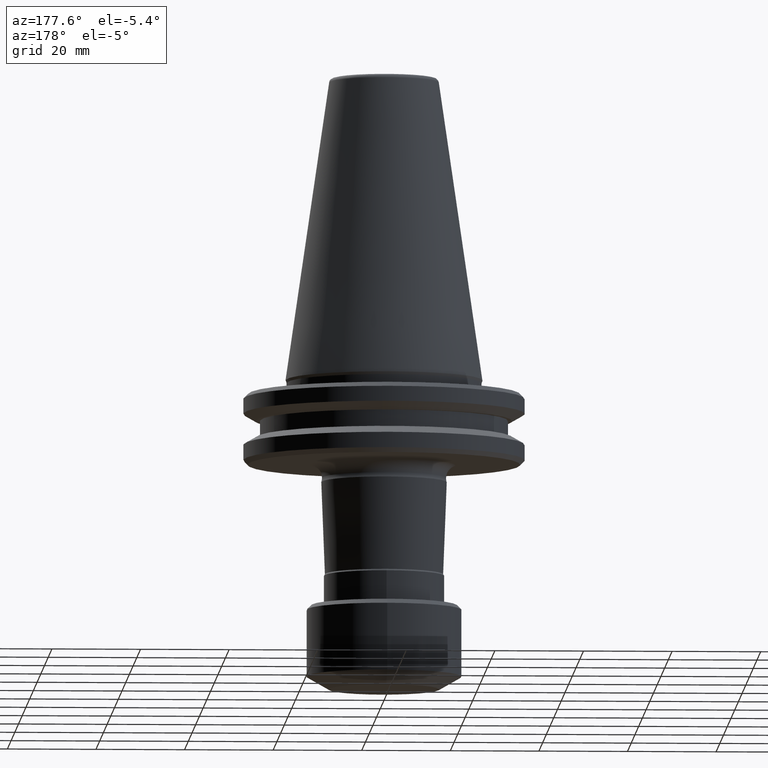
[diagram: clean part render]
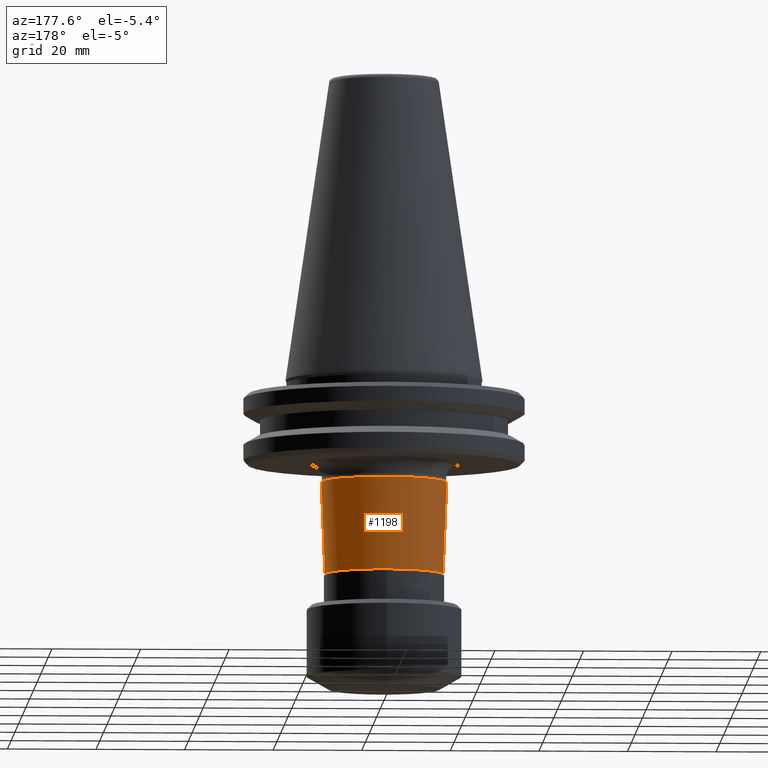
[diagram: same view with one face highlighted and labeled with its STEP entity id]
A machine part, auxiliary view. The second image highlights one B-rep face of the part: STEP entity #1198.
In plain terms, the highlighted conical surface has half-angle 2.232 deg.
Its self-contained STEP definition (entity closure, byte-faithful):
#40 = CARTESIAN_POINT ( 'NONE',  ( 0.0000000000000000000, 13.34720323443339000, 44.57400106754526100 ) ) ;
#41 = CIRCLE ( 'NONE', #1103, 13.34720323443339600 ) ;
#78 = VERTEX_POINT ( 'NONE', #818 ) ;
#93 = VERTEX_POINT ( 'NONE', #986 ) ;
#107 = CARTESIAN_POINT ( 'NONE',  ( 12.54406990404315000, 0.0000000000000000000, 23.96769204457355300 ) ) ;
#142 = CARTESIAN_POINT ( 'NONE',  ( -12.54406990404315000, 1.536205505626709200E-015, 23.96769204457355300 ) ) ;
#151 = AXIS2_PLACEMENT_3D ( 'NONE', #1184, #1091, #926 ) ;
#186 = ORIENTED_EDGE ( 'NONE', *, *, #1290, .T. ) ;
#194 = VERTEX_POINT ( 'NONE', #1119 ) ;
#195 = VECTOR ( 'NONE', #888, 1000.000000000000100 ) ;
#223 = DIRECTION ( 'NONE',  ( -0.0000000000000000000, 1.224646799147353200E-016, -1.000000000000000000 ) ) ;
#233 = ORIENTED_EDGE ( 'NONE', *, *, #488, .F. ) ;
#322 = EDGE_LOOP ( 'NONE', ( #432, #186, #503, #482, #233 ) ) ;
#413 = LINE ( 'NONE', #142, #195 ) ;
#432 = ORIENTED_EDGE ( 'NONE', *, *, #607, .F. ) ;
#481 = DIRECTION ( 'NONE',  ( -0.0000000000000000000, 1.224646799147353200E-016, -1.000000000000000000 ) ) ;
#482 = ORIENTED_EDGE ( 'NONE', *, *, #878, .F. ) ;
#488 = EDGE_CURVE ( 'NONE', #711, #194, #795, .T. ) ;
#503 = ORIENTED_EDGE ( 'NONE', *, *, #578, .T. ) ;
#534 = DIRECTION ( 'NONE',  ( -0.0000000000000000000, -0.0000000000000000000, -1.000000000000000000 ) ) ;
#570 = CARTESIAN_POINT ( 'NONE',  ( -14.16017862378919600, 1.734121742697821200E-015, 65.43283168412078500 ) ) ;
#578 = EDGE_CURVE ( 'NONE', #858, #78, #935, .T. ) ;
#607 = EDGE_CURVE ( 'NONE', #93, #711, #41, .T. ) ;
#654 = AXIS2_PLACEMENT_3D ( 'NONE', #1092, #534, #1185 ) ;
#695 = VECTOR ( 'NONE', #1212, 1000.000000000000100 ) ;
#711 = VERTEX_POINT ( 'NONE', #40 ) ;
#776 = FACE_OUTER_BOUND ( 'NONE', #322, .T. ) ;
#795 = CIRCLE ( 'NONE', #1239, 13.34720323443339600 ) ;
#818 = CARTESIAN_POINT ( 'NONE',  ( 14.16017862378919600, 0.0000000000000000000, 65.43283168412078500 ) ) ;
#858 = VERTEX_POINT ( 'NONE', #570 ) ;
#867 = CARTESIAN_POINT ( 'NONE',  ( 0.0000000000000000000, -5.110797284572087000E-015, 44.57400106754526100 ) ) ;
#878 = EDGE_CURVE ( 'NONE', #194, #78, #1018, .T. ) ;
#888 = DIRECTION ( 'NONE',  ( -0.03894554914209577600, 4.769454209790353300E-018, 0.9992413343141988100 ) ) ;
#926 = DIRECTION ( 'NONE',  ( 1.000000000000000000, 0.0000000000000000000, 0.0000000000000000000 ) ) ;
#935 = CIRCLE ( 'NONE', #654, 14.16017862378919600 ) ;
#950 = DIRECTION ( 'NONE',  ( -8.881784197001252300E-016, -1.000000000000000000, 0.0000000000000000000 ) ) ;
#986 = CARTESIAN_POINT ( 'NONE',  ( -13.34720323443339600, 1.684341357279812800E-015, 44.57400106754526100 ) ) ;
#1018 = LINE ( 'NONE', #107, #695 ) ;
#1049 = CARTESIAN_POINT ( 'NONE',  ( 0.0000000000000000000, -5.110797284572087000E-015, 44.57400106754526100 ) ) ;
#1091 = DIRECTION ( 'NONE',  ( 0.0000000000000000000, 0.0000000000000000000, 1.000000000000000000 ) ) ;
#1092 = CARTESIAN_POINT ( 'NONE',  ( 0.0000000000000000000, 0.0000000000000000000, 65.43283168412078500 ) ) ;
#1097 = CONICAL_SURFACE ( 'NONE', #151, 12.54406990404315000, 0.03895540101578826000 ) ;
#1103 = AXIS2_PLACEMENT_3D ( 'NONE', #1049, #481, #1137 ) ;
#1119 = CARTESIAN_POINT ( 'NONE',  ( 13.34720323443339600, -7.703719777548943400E-031, 44.57400106754526100 ) ) ;
#1137 = DIRECTION ( 'NONE',  ( 0.0000000000000000000, -1.000000000000000000, 0.0000000000000000000 ) ) ;
#1184 = CARTESIAN_POINT ( 'NONE',  ( 0.0000000000000000000, 0.0000000000000000000, 23.96769204457355300 ) ) ;
#1185 = DIRECTION ( 'NONE',  ( -1.000000000000000000, 0.0000000000000000000, 0.0000000000000000000 ) ) ;
#1198 = ADVANCED_FACE ( 'NONE', ( #776 ), #1097, .T. ) ;
#1212 = DIRECTION ( 'NONE',  ( 0.03894554914209577600, 0.0000000000000000000, 0.9992413343141988100 ) ) ;
#1239 = AXIS2_PLACEMENT_3D ( 'NONE', #867, #223, #950 ) ;
#1290 = EDGE_CURVE ( 'NONE', #93, #858, #413, .T. ) ;